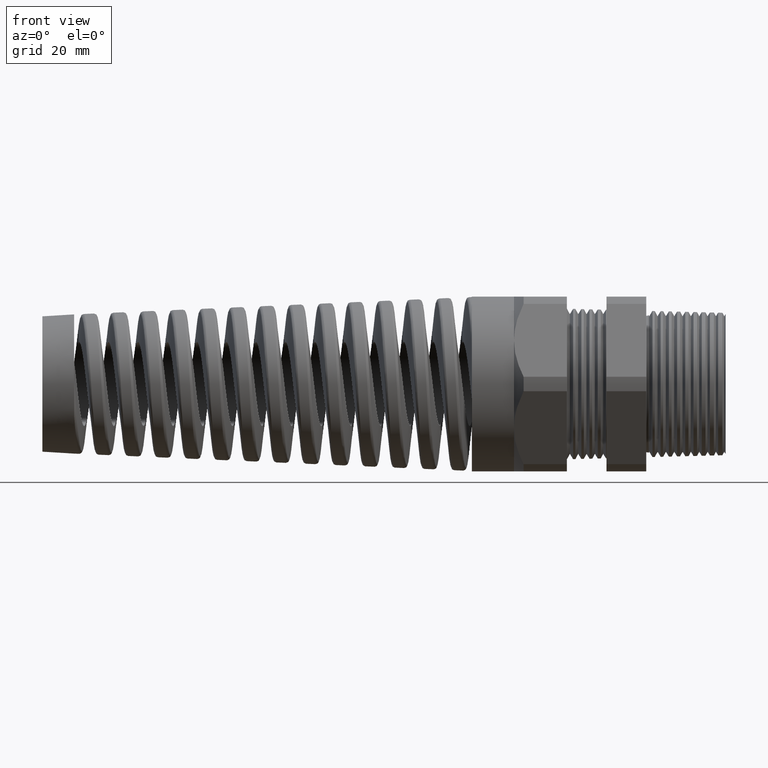
[diagram: clean part render]
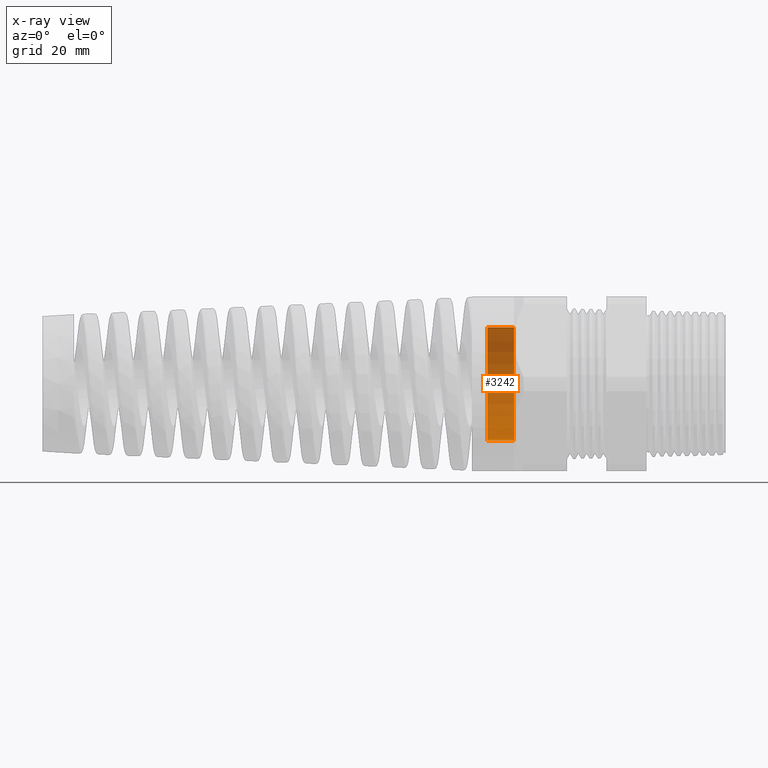
[diagram: x-ray — body ghosted, one internal face saturated and labeled with its STEP entity id]
A machine part, front view, then the same camera in x-ray: the body is ghosted and one INTERNAL B-rep face — a face not visible from any outside direction — is saturated and labeled: STEP entity #3242.
In plain terms, the highlighted cylindrical surface (partial cylindrical patch) has radius 10.668 mm, axis along (1, 0, 0).
Its self-contained STEP definition (entity closure, byte-faithful):
#1293 = CARTESIAN_POINT ( 'NONE',  ( -1.293779527559055300, 5.143516556418884400E-017, 0.4200000000000000400 ) ) ;
#1294 = DIRECTION ( 'NONE',  ( 1.000000000000000000, 0.0000000000000000000, 0.0000000000000000000 ) ) ;
#1295 = VECTOR ( 'NONE', #1294, 39.37007874015748100 ) ;
#1296 = CARTESIAN_POINT ( 'NONE',  ( 0.0000000000000000000, 5.143516556418884400E-017, 0.4200000000000000400 ) ) ;
#1297 = LINE ( 'NONE', #1296, #1295 ) ;
#3234 = VERTEX_POINT ( 'NONE', #4128 ) ;
#3242 = ADVANCED_FACE ( 'NONE', ( #3862 ), #3858, .T. ) ;
#3243 = EDGE_LOOP ( 'NONE', ( #11906, #12046, #11805, #11841 ) ) ;
#3245 = EDGE_CURVE ( 'NONE', #3246, #3234, #3844, .T. ) ;
#3246 = VERTEX_POINT ( 'NONE', #3839 ) ;
#3839 = CARTESIAN_POINT ( 'NONE',  ( -1.491000000000000100, 0.0000000000000000000, -0.4200000000000000400 ) ) ;
#3840 = DIRECTION ( 'NONE',  ( 0.0000000000000000000, 0.0000000000000000000, -1.000000000000000000 ) ) ;
#3841 = DIRECTION ( 'NONE',  ( 1.000000000000000000, 0.0000000000000000000, 0.0000000000000000000 ) ) ;
#3842 = AXIS2_PLACEMENT_3D ( 'NONE', #3857, #3841, #3840 ) ;
#3844 = CIRCLE ( 'NONE', #3842, 0.4200000000000000400 ) ;
#3850 = DIRECTION ( 'NONE',  ( 0.0000000000000000000, 0.0000000000000000000, -1.000000000000000000 ) ) ;
#3852 = DIRECTION ( 'NONE',  ( 1.000000000000000000, 0.0000000000000000000, 0.0000000000000000000 ) ) ;
#3853 = CARTESIAN_POINT ( 'NONE',  ( 0.0000000000000000000, 0.0000000000000000000, 0.0000000000000000000 ) ) ;
#3855 = AXIS2_PLACEMENT_3D ( 'NONE', #3853, #3852, #3850 ) ;
#3857 = CARTESIAN_POINT ( 'NONE',  ( -1.491000000000000100, 0.0000000000000000000, 0.0000000000000000000 ) ) ;
#3858 = CYLINDRICAL_SURFACE ( 'NONE', #3855, 0.4200000000000000400 ) ;
#3862 = FACE_OUTER_BOUND ( 'NONE', #3243, .T. ) ;
#4128 = CARTESIAN_POINT ( 'NONE',  ( -1.491000000000000100, 5.143516556418884400E-017, 0.4200000000000000400 ) ) ;
#11805 = ORIENTED_EDGE ( 'NONE', *, *, #11806, .F. ) ;
#11806 = EDGE_CURVE ( 'NONE', #11807, #12048, #16801, .T. ) ;
#11807 = VERTEX_POINT ( 'NONE', #16797 ) ;
#11841 = ORIENTED_EDGE ( 'NONE', *, *, #11842, .F. ) ;
#11842 = EDGE_CURVE ( 'NONE', #3246, #11807, #16977, .T. ) ;
#11906 = ORIENTED_EDGE ( 'NONE', *, *, #3245, .T. ) ;
#12046 = ORIENTED_EDGE ( 'NONE', *, *, #12047, .T. ) ;
#12047 = EDGE_CURVE ( 'NONE', #3234, #12048, #1297, .T. ) ;
#12048 = VERTEX_POINT ( 'NONE', #1293 ) ;
#16734 = CARTESIAN_POINT ( 'NONE',  ( -1.293779527559055300, 0.0000000000000000000, 0.0000000000000000000 ) ) ;
#16797 = CARTESIAN_POINT ( 'NONE',  ( -1.293779527559055300, 0.0000000000000000000, -0.4200000000000000400 ) ) ;
#16798 = DIRECTION ( 'NONE',  ( 0.0000000000000000000, 0.0000000000000000000, -1.000000000000000000 ) ) ;
#16799 = DIRECTION ( 'NONE',  ( 1.000000000000000000, 0.0000000000000000000, 0.0000000000000000000 ) ) ;
#16800 = AXIS2_PLACEMENT_3D ( 'NONE', #16734, #16799, #16798 ) ;
#16801 = CIRCLE ( 'NONE', #16800, 0.4200000000000000400 ) ;
#16969 = DIRECTION ( 'NONE',  ( 1.000000000000000000, 0.0000000000000000000, 0.0000000000000000000 ) ) ;
#16970 = VECTOR ( 'NONE', #16969, 39.37007874015748100 ) ;
#16971 = CARTESIAN_POINT ( 'NONE',  ( 0.0000000000000000000, 0.0000000000000000000, -0.4200000000000000400 ) ) ;
#16977 = LINE ( 'NONE', #16971, #16970 ) ;